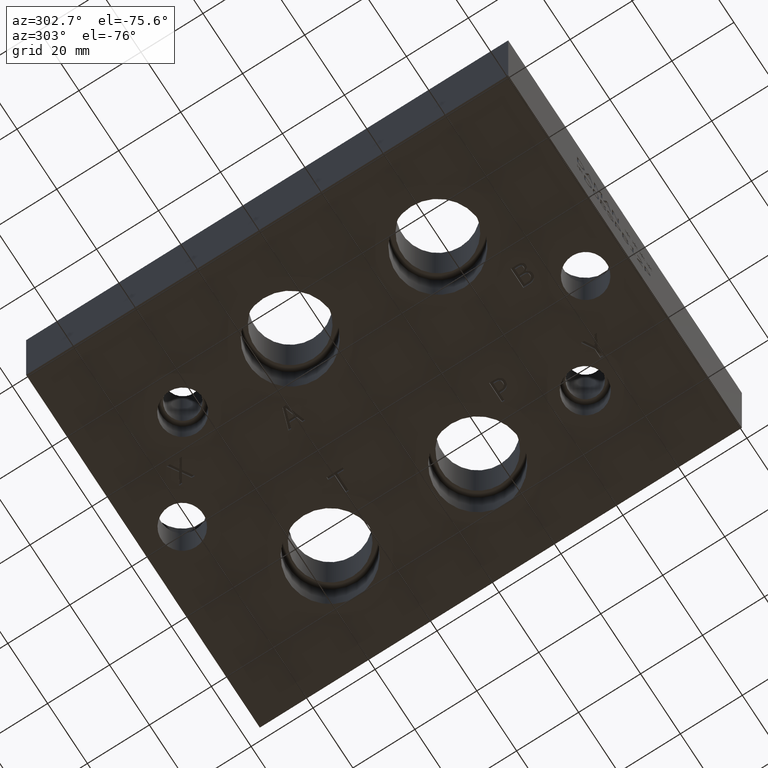
[diagram: clean part render]
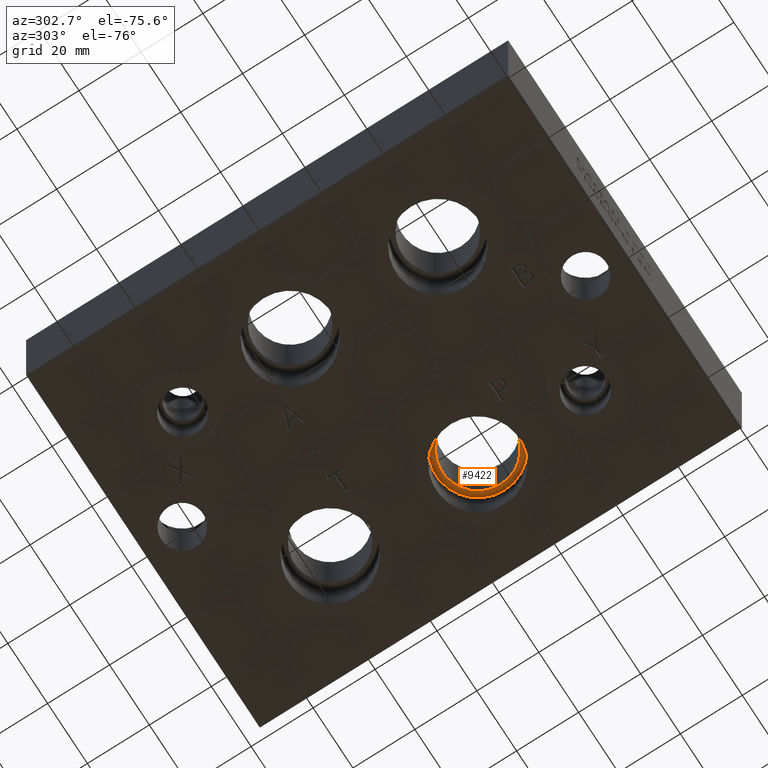
[diagram: same view with one face highlighted and labeled with its STEP entity id]
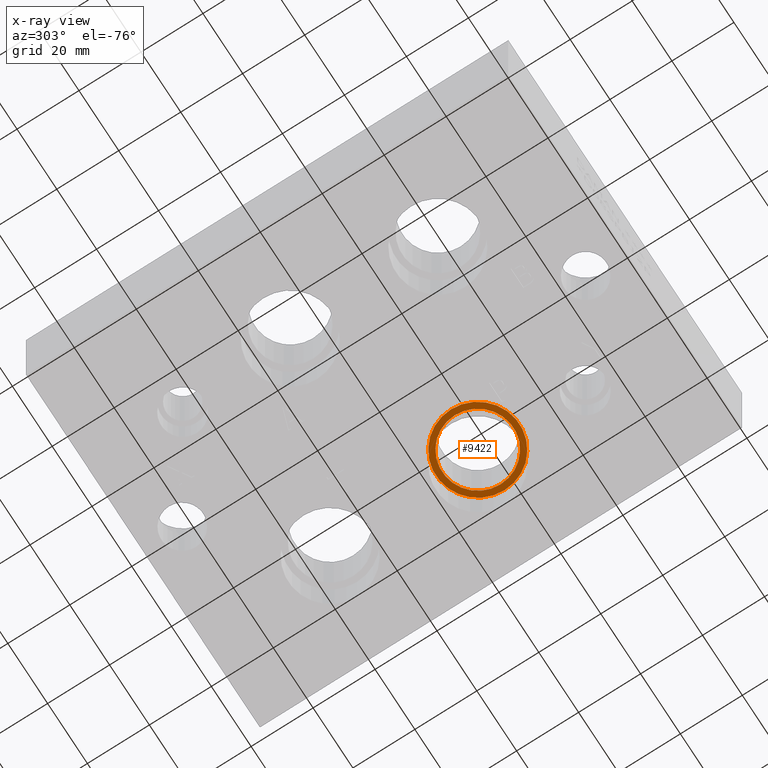
[diagram: x-ray of the same camera — body ghosted, the highlighted face saturated]
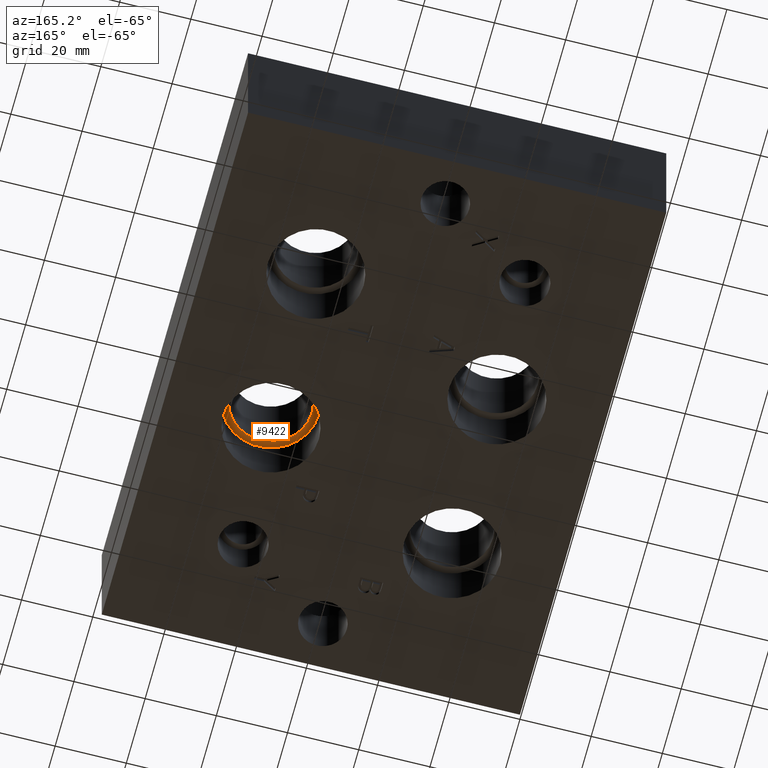
[diagram: same view with one face highlighted and labeled with its STEP entity id]
A machine part, auxiliary view. The second image highlights one B-rep face of the part: STEP entity #9422.
The next image is the same camera in x-ray: the body ghosted, the highlighted face saturated — about 0% of this face is hidden behind the body in this view.
A second angle (auxiliary view) of the same face is appended — the face is thin or edge-on in the first view.
In plain terms, the highlighted planar face has unit normal (0, 0, -1).
Its self-contained STEP definition (entity closure, byte-faithful):
#66=CIRCLE('',#9802,13.462);
#67=CIRCLE('',#9803,13.462);
#68=CIRCLE('',#9804,11.5062);
#204=FACE_BOUND('',#1494,.T.);
#527=PLANE('',#9801);
#967=FACE_OUTER_BOUND('',#1493,.T.);
#1493=EDGE_LOOP('',(#8177,#8178));
#1494=EDGE_LOOP('',(#8179));
#4487=VERTEX_POINT('',#15811);
#4488=VERTEX_POINT('',#15812);
#4489=VERTEX_POINT('',#15815);
#5748=EDGE_CURVE('',#4487,#4488,#66,.T.);
#5749=EDGE_CURVE('',#4488,#4487,#67,.T.);
#5750=EDGE_CURVE('',#4489,#4489,#68,.T.);
#8177=ORIENTED_EDGE('',*,*,#5748,.T.);
#8178=ORIENTED_EDGE('',*,*,#5749,.T.);
#8179=ORIENTED_EDGE('',*,*,#5750,.F.);
#9422=ADVANCED_FACE('',(#967,#204),#527,.T.);
#9801=AXIS2_PLACEMENT_3D('',#15810,#11458,#11459);
#9802=AXIS2_PLACEMENT_3D('',#15813,#11460,#11461);
#9803=AXIS2_PLACEMENT_3D('',#15814,#11462,#11463);
#9804=AXIS2_PLACEMENT_3D('',#15816,#11464,#11465);
#11458=DIRECTION('center_axis',(0.,0.,-1.));
#11459=DIRECTION('ref_axis',(1.,0.,0.));
#11460=DIRECTION('center_axis',(0.,0.,-1.));
#11461=DIRECTION('ref_axis',(1.,0.,0.));
#11462=DIRECTION('center_axis',(0.,0.,-1.));
#11463=DIRECTION('ref_axis',(1.,0.,0.));
#11464=DIRECTION('center_axis',(0.,0.,-1.));
#11465=DIRECTION('ref_axis',(1.,0.,0.));
#15810=CARTESIAN_POINT('Origin',(87.3252,65.8876,15.8496));
#15811=CARTESIAN_POINT('',(100.7872,65.8876,15.8496));
#15812=CARTESIAN_POINT('',(73.8632,65.8876,15.8496));
#15813=CARTESIAN_POINT('Origin',(87.3252,65.8876,15.8496));
#15814=CARTESIAN_POINT('Origin',(87.3252,65.8876,15.8496));
#15815=CARTESIAN_POINT('',(75.819,65.8876,15.8496));
#15816=CARTESIAN_POINT('Origin',(87.3252,65.8876,15.8496));